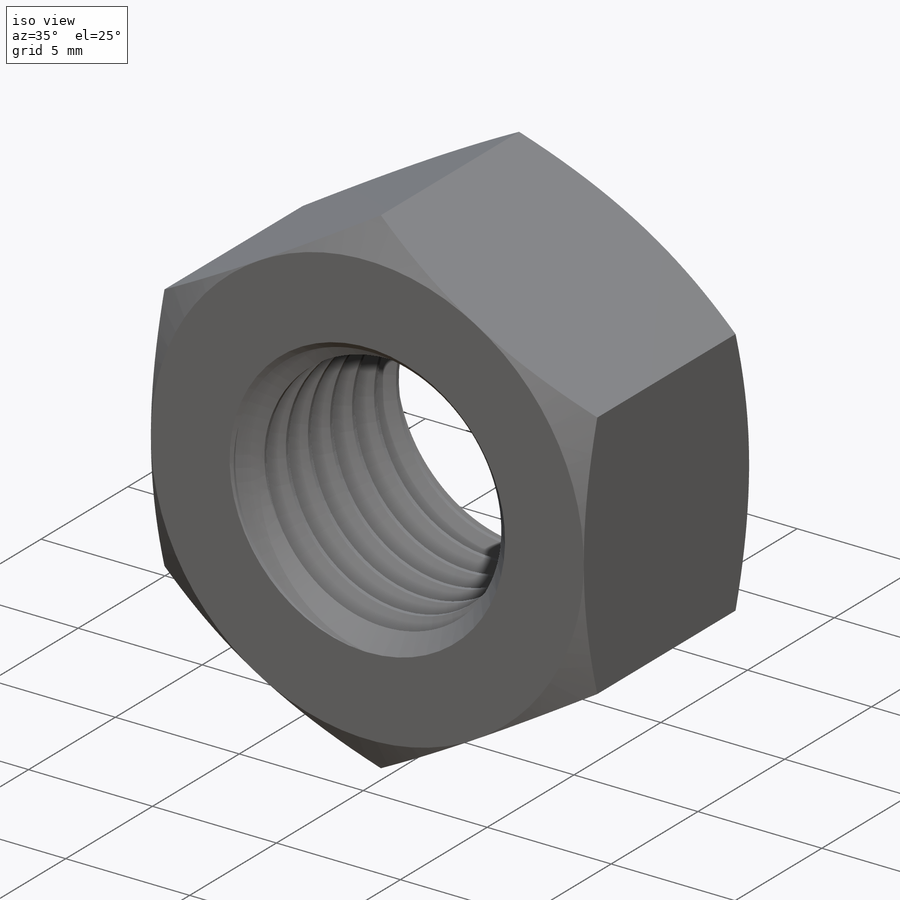
[diagram: iso view]
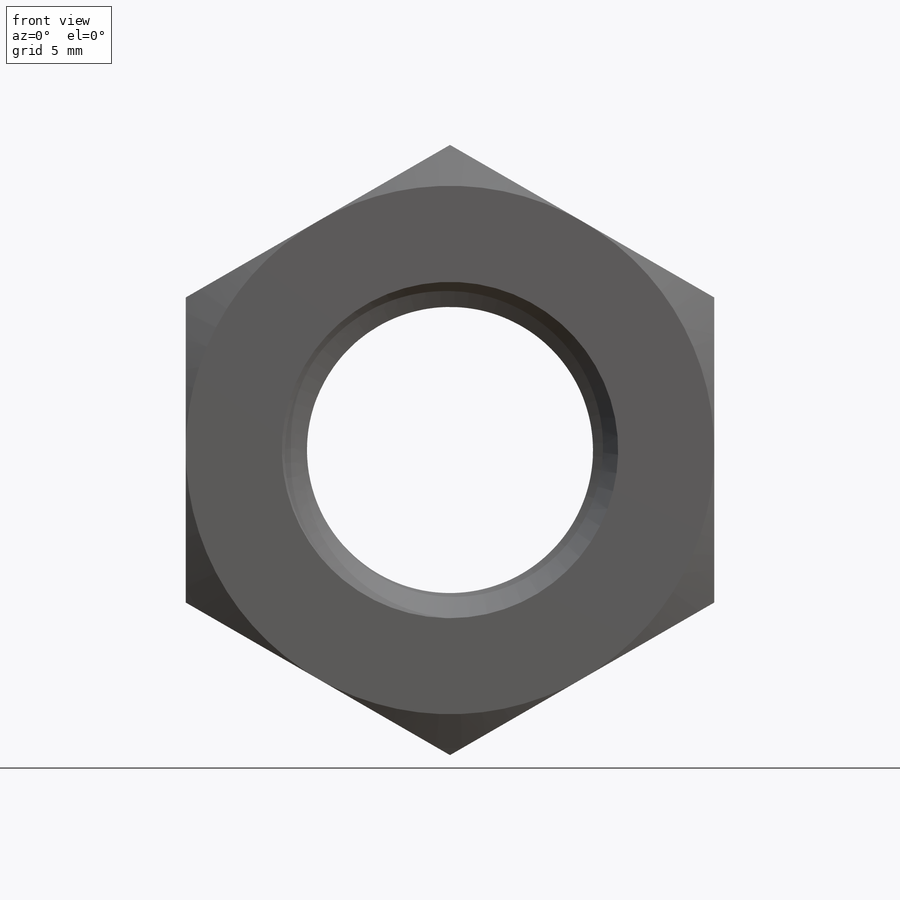
[diagram: front view]
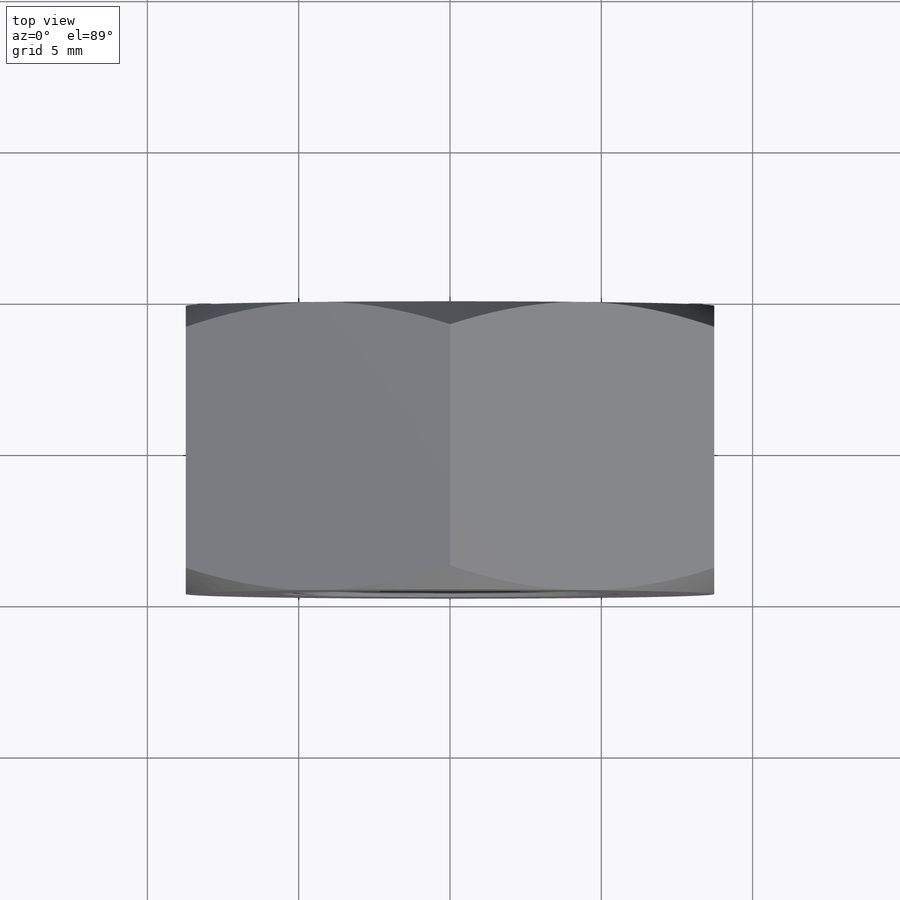
[diagram: top view]
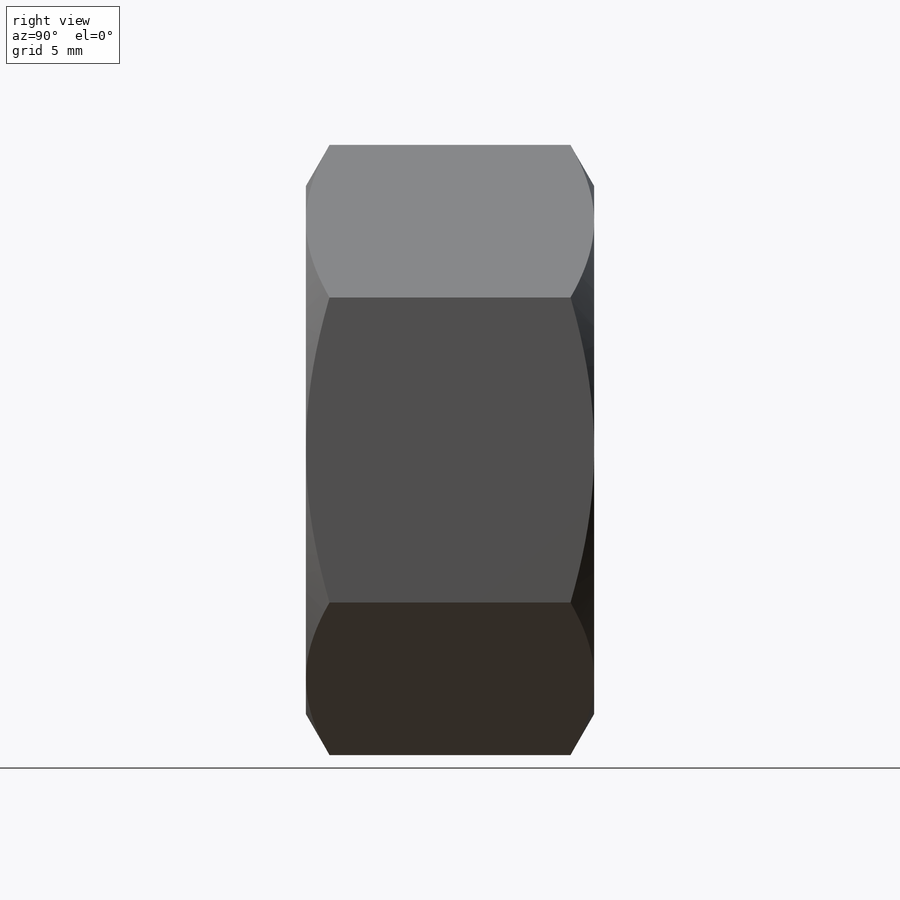
[diagram: right view]
SOLIDWORKS PART (.sldprt)
format: sldprt  version: not decoded by parser v0  size: 695,808 bytes
history: native  units: mm
features: sketch x6, material x1, extrude x1, helix x1, sweep x1, cut_revolve x1, cut_extrude x1, mirror x1 (+15 scaffold rows collapsed)
feature tree (28):
  scaffold x15  (default folders/planes/origin — collapsed)
  material  "Material <not specified>"
  sketch  "Sketch1"  dims[hex=17.4625mm dia=11.1125mm]
  extrude  "Extrude1"  Depth=9.525mm length=9.525mm
  sketch  "Sketch4"
  helix  "Helix/Spiral3"  Pitch=11.43mm
  sketch  "Sketch3"  dims[c1.D1=~5.640263mm c2.D1=60.0deg c2.D2=0.635mm c2.D3=~0.15875mm]
  sweep  "Sweep1"
  sketch  "Sketch6"  dims[c1.D1=~14.708106mm c2.D1=~61.849007deg c3.D1=~6.939237mm c4.D1=45.0deg c4.D2=0.635mm]
  cut_revolve  "Cut-Revolve1"  Angle=360deg
  sketch  "Sketch7"
  cut_extrude  "Extrude2"  Depth=25.4mm
  mirror  "Mirror1"
  sketch  "Sketch8"  dims[c1.D1=3.175mm c2.D1=45.0deg c2.hex flats=14.2748mm c2.hex flats/2=7.366mm]
decode coverage: 8 of 12 modeling features carry decoded parameters
note: ~ marks probable driven/reference dimensions
note: suppression state not decoded; provenance and decode notes live in map.json
